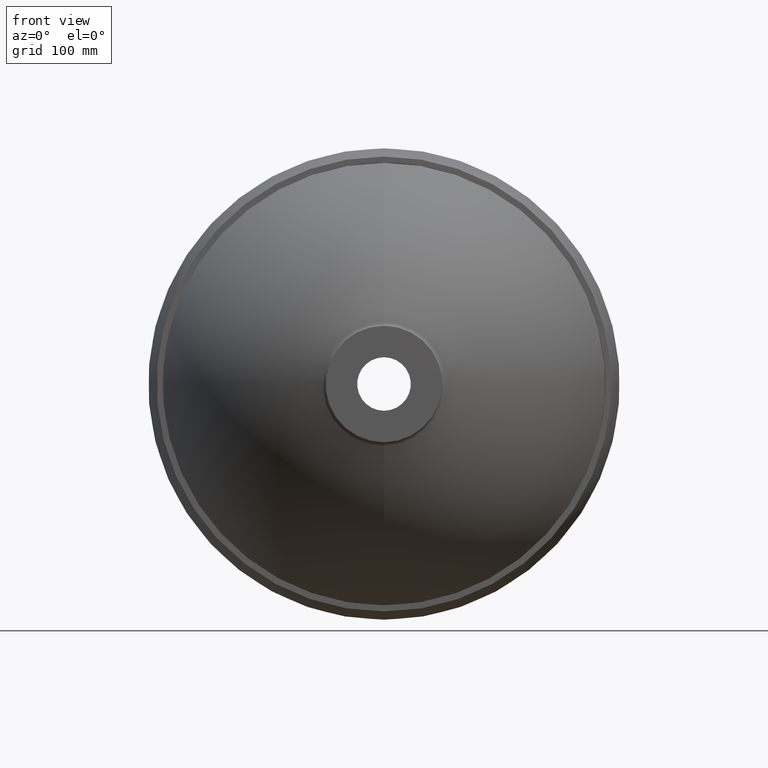
[diagram: clean part render]
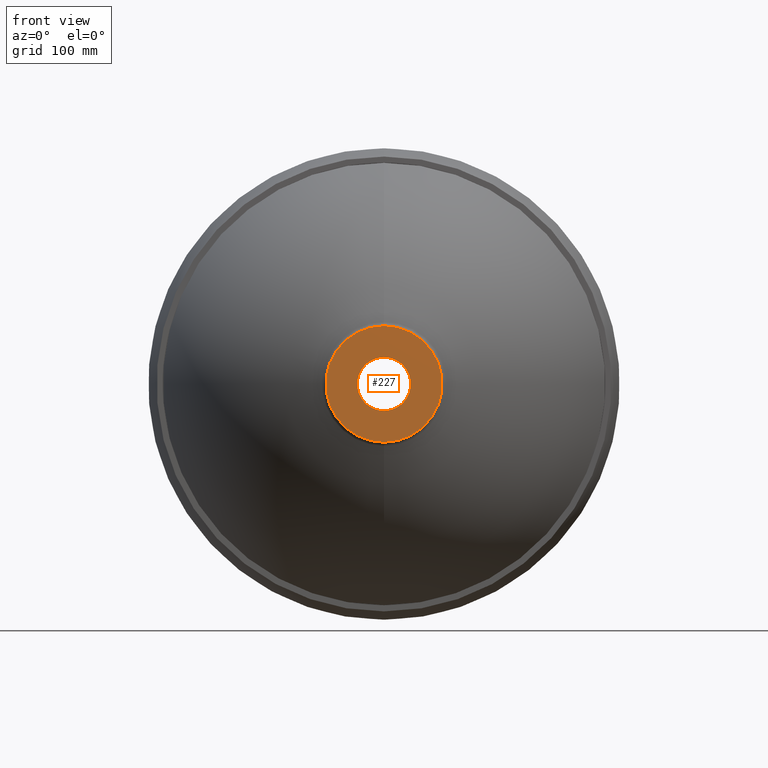
[diagram: same view with one face highlighted and labeled with its STEP entity id]
A machine part, front view. The second image highlights one B-rep face of the part: STEP entity #227.
In plain terms, the highlighted planar face has unit normal (0, 1, 0).
Its self-contained STEP definition (entity closure, byte-faithful):
#5 = DIRECTION ( 'NONE',  ( -0.0000000000000000000, -1.000000000000000000, -0.0000000000000000000 ) ) ;
#24 = DIRECTION ( 'NONE',  ( 0.0000000000000000000, 0.0000000000000000000, -1.000000000000000000 ) ) ;
#26 = DIRECTION ( 'NONE',  ( -0.0000000000000000000, -1.000000000000000000, -0.0000000000000000000 ) ) ;
#55 = VERTEX_POINT ( 'NONE', #414 ) ;
#59 = ORIENTED_EDGE ( 'NONE', *, *, #567, .F. ) ;
#79 = EDGE_CURVE ( 'NONE', #55, #329, #421, .T. ) ;
#84 = ORIENTED_EDGE ( 'NONE', *, *, #79, .T. ) ;
#85 = EDGE_LOOP ( 'NONE', ( #685, #59 ) ) ;
#86 = DIRECTION ( 'NONE',  ( -0.0000000000000000000, -1.000000000000000000, -0.0000000000000000000 ) ) ;
#98 = VERTEX_POINT ( 'NONE', #201 ) ;
#146 = AXIS2_PLACEMENT_3D ( 'NONE', #417, #26, #24 ) ;
#160 = VERTEX_POINT ( 'NONE', #290 ) ;
#165 = AXIS2_PLACEMENT_3D ( 'NONE', #554, #410, #457 ) ;
#177 = CARTESIAN_POINT ( 'NONE',  ( 0.0000000000000000000, 0.0000000000000000000, 23.00000000000000000 ) ) ;
#181 = CIRCLE ( 'NONE', #228, 23.00000000000000000 ) ;
#197 = FACE_BOUND ( 'NONE', #85, .T. ) ;
#201 = CARTESIAN_POINT ( 'NONE',  ( 0.0000000000000000000, 0.0000000000000000000, -23.00000000000000000 ) ) ;
#227 = ADVANCED_FACE ( 'NONE', ( #197, #294 ), #593, .F. ) ;
#228 = AXIS2_PLACEMENT_3D ( 'NONE', #446, #5, #279 ) ;
#259 = CIRCLE ( 'NONE', #165, 50.00000000000000000 ) ;
#261 = ORIENTED_EDGE ( 'NONE', *, *, #362, .T. ) ;
#279 = DIRECTION ( 'NONE',  ( 0.0000000000000000000, 0.0000000000000000000, -1.000000000000000000 ) ) ;
#290 = CARTESIAN_POINT ( 'NONE',  ( 2.816687638038917100E-015, 0.0000000000000000000, 23.00000000000000000 ) ) ;
#294 = FACE_OUTER_BOUND ( 'NONE', #327, .T. ) ;
#313 = CARTESIAN_POINT ( 'NONE',  ( 0.0000000000000000000, 0.0000000000000000000, -50.00000000000000000 ) ) ;
#321 = AXIS2_PLACEMENT_3D ( 'NONE', #177, #651, #648 ) ;
#327 = EDGE_LOOP ( 'NONE', ( #261, #84 ) ) ;
#329 = VERTEX_POINT ( 'NONE', #313 ) ;
#358 = DIRECTION ( 'NONE',  ( 0.0000000000000000000, 0.0000000000000000000, -1.000000000000000000 ) ) ;
#362 = EDGE_CURVE ( 'NONE', #329, #55, #259, .T. ) ;
#410 = DIRECTION ( 'NONE',  ( -0.0000000000000000000, -1.000000000000000000, -0.0000000000000000000 ) ) ;
#414 = CARTESIAN_POINT ( 'NONE',  ( 6.123233995736766100E-015, 0.0000000000000000000, 50.00000000000000000 ) ) ;
#417 = CARTESIAN_POINT ( 'NONE',  ( 0.0000000000000000000, 0.0000000000000000000, 0.0000000000000000000 ) ) ;
#421 = CIRCLE ( 'NONE', #146, 50.00000000000000000 ) ;
#423 = AXIS2_PLACEMENT_3D ( 'NONE', #455, #86, #358 ) ;
#435 = EDGE_CURVE ( 'NONE', #98, #160, #542, .T. ) ;
#446 = CARTESIAN_POINT ( 'NONE',  ( 0.0000000000000000000, 0.0000000000000000000, 0.0000000000000000000 ) ) ;
#455 = CARTESIAN_POINT ( 'NONE',  ( 0.0000000000000000000, 0.0000000000000000000, 0.0000000000000000000 ) ) ;
#457 = DIRECTION ( 'NONE',  ( 0.0000000000000000000, 0.0000000000000000000, -1.000000000000000000 ) ) ;
#542 = CIRCLE ( 'NONE', #423, 23.00000000000000000 ) ;
#554 = CARTESIAN_POINT ( 'NONE',  ( 0.0000000000000000000, 0.0000000000000000000, 0.0000000000000000000 ) ) ;
#567 = EDGE_CURVE ( 'NONE', #160, #98, #181, .T. ) ;
#593 = PLANE ( 'NONE',  #321 ) ;
#648 = DIRECTION ( 'NONE',  ( 0.0000000000000000000, -0.0000000000000000000, 1.000000000000000000 ) ) ;
#651 = DIRECTION ( 'NONE',  ( 0.0000000000000000000, 1.000000000000000000, 0.0000000000000000000 ) ) ;
#685 = ORIENTED_EDGE ( 'NONE', *, *, #435, .F. ) ;